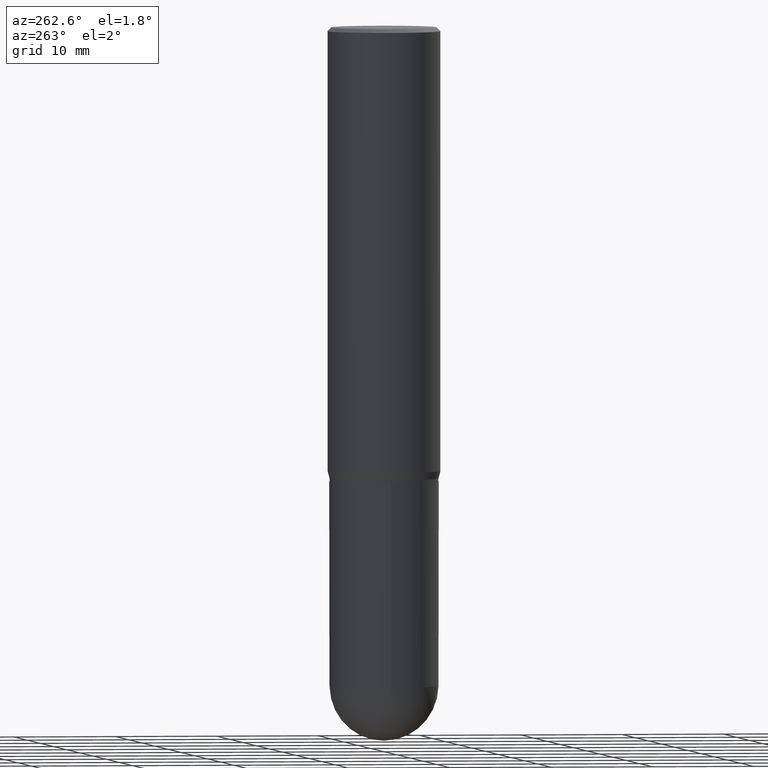
[diagram: clean part render]
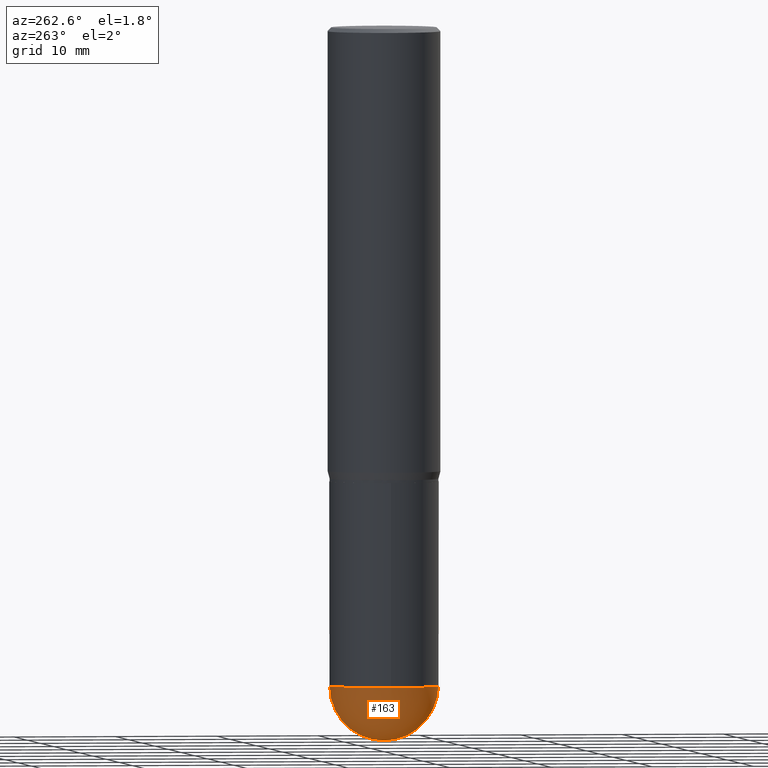
[diagram: same view with one face highlighted and labeled with its STEP entity id]
A machine part, auxiliary view. The second image highlights one B-rep face of the part: STEP entity #163.
In plain terms, the highlighted spherical surface has radius 5.3581 mm.
Its self-contained STEP definition (entity closure, byte-faithful):
#8 = AXIS2_PLACEMENT_3D ( 'NONE', #244, #126, #11 ) ;
#11 = DIRECTION ( 'NONE',  ( 1.000000000000000000, -6.982962677686265133E-15, 0.000000000000000000 ) ) ;
#40 = DIRECTION ( 'NONE',  ( 6.982962677686265133E-15, 1.000000000000000000, -2.590043132177541277E-15 ) ) ;
#52 = DIRECTION ( 'NONE',  ( -1.000000000000000000, 7.105427357601001070E-15, -4.926315508542082329E-29 ) ) ;
#53 = VERTEX_POINT ( 'NONE', #103 ) ;
#79 = VERTEX_POINT ( 'NONE', #364 ) ;
#103 = CARTESIAN_POINT ( 'NONE',  ( -1.498889901085869604E-15, -0.2109500000000089637, -2.539049999999999585 ) ) ;
#126 = DIRECTION ( 'NONE',  ( -2.445468806185136597E-29, 3.491481338843145583E-15, 1.000000000000000000 ) ) ;
#145 = DIRECTION ( 'NONE',  ( -2.445468806185136597E-29, 3.491481338843145583E-15, 1.000000000000000000 ) ) ;
#150 = DIRECTION ( 'NONE',  ( 1.000000000000000000, -6.982962677686265133E-15, 0.000000000000000000 ) ) ;
#154 = DIRECTION ( 'NONE',  ( -1.000000000000000000, 6.982962677686265133E-15, -4.883557194083112340E-29 ) ) ;
#156 = AXIS2_PLACEMENT_3D ( 'NONE', #320, #154, #40 ) ;
#158 = SPHERICAL_SURFACE ( 'NONE', #156, 0.2109500000000001096 ) ;
#160 = FACE_OUTER_BOUND ( 'NONE', #353, .T. ) ;
#163 = ADVANCED_FACE ( 'NONE', ( #160 ), #158, .T. ) ;
#169 = DIRECTION ( 'NONE',  ( 1.000000000000000000, -6.982962677686265922E-15, 4.883557194083112340E-29 ) ) ;
#171 = AXIS2_PLACEMENT_3D ( 'NONE', #291, #52, #329 ) ;
#205 = EDGE_CURVE ( 'NONE', #247, #394, #280, .T. ) ;
#225 = ORIENTED_EDGE ( 'NONE', *, *, #205, .F. ) ;
#244 = CARTESIAN_POINT ( 'NONE',  ( 6.209167572344372023E-29, -8.865045693389689499E-15, -2.539050000000000473 ) ) ;
#246 = EDGE_CURVE ( 'NONE', #79, #53, #367, .T. ) ;
#247 = VERTEX_POINT ( 'NONE', #325 ) ;
#280 = CIRCLE ( 'NONE', #8, 0.2109500000000000541 ) ;
#291 = CARTESIAN_POINT ( 'NONE',  ( 6.191127839474132236E-29, -8.890879617617701491E-15, -2.539049999999999585 ) ) ;
#320 = CARTESIAN_POINT ( 'NONE',  ( 6.191127839474132236E-29, -8.890879617617701491E-15, -2.539049999999999585 ) ) ;
#325 = CARTESIAN_POINT ( 'NONE',  ( 1.473055976857980082E-15, 0.2109499999999912001, -2.539050000000000917 ) ) ;
#326 = CARTESIAN_POINT ( 'NONE',  ( 6.191127839474132236E-29, -8.890879617617701491E-15, -2.539049999999999585 ) ) ;
#329 = DIRECTION ( 'NONE',  ( -7.105427357601001070E-15, -1.000000000000000000, 0.000000000000000000 ) ) ;
#332 = DIRECTION ( 'NONE',  ( 6.982962677686265922E-15, 1.000000000000000000, 0.000000000000000000 ) ) ;
#342 = CARTESIAN_POINT ( 'NONE',  ( -0.2109500000000000541, -5.988679117096665555E-15, -2.539050000000000473 ) ) ;
#352 = EDGE_CURVE ( 'NONE', #79, #247, #377, .T. ) ;
#353 = EDGE_LOOP ( 'NONE', ( #358, #418, #481, #225 ) ) ;
#356 = AXIS2_PLACEMENT_3D ( 'NONE', #505, #145, #150 ) ;
#358 = ORIENTED_EDGE ( 'NONE', *, *, #352, .F. ) ;
#364 = CARTESIAN_POINT ( 'NONE',  ( 6.716019350574006308E-29, -9.614490643932656644E-15, -2.750000000000000000 ) ) ;
#367 = CIRCLE ( 'NONE', #171, 0.2109500000000001096 ) ;
#377 = CIRCLE ( 'NONE', #406, 0.2109500000000001096 ) ;
#394 = VERTEX_POINT ( 'NONE', #342 ) ;
#406 = AXIS2_PLACEMENT_3D ( 'NONE', #326, #169, #332 ) ;
#418 = ORIENTED_EDGE ( 'NONE', *, *, #246, .T. ) ;
#457 = CIRCLE ( 'NONE', #356, 0.2109500000000000541 ) ;
#477 = EDGE_CURVE ( 'NONE', #394, #53, #457, .T. ) ;
#481 = ORIENTED_EDGE ( 'NONE', *, *, #477, .F. ) ;
#505 = CARTESIAN_POINT ( 'NONE',  ( 6.209167572344372023E-29, -8.865045693389689499E-15, -2.539050000000000473 ) ) ;